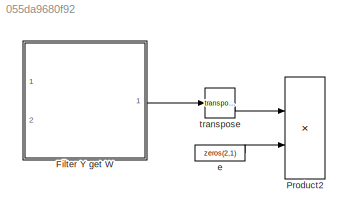
MODEL slx_055da9680f92
KIND model
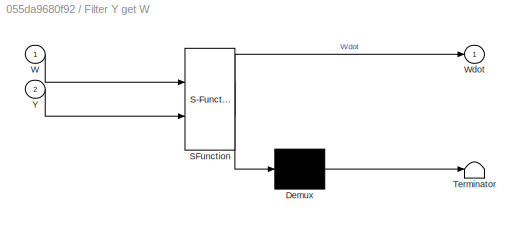
BLOCK [SubSystem] Filter Y get W
  ErrorFcn = Stateflow.Translate.translate
  FunctionWithSeparateData = off
  MaskHideContents = off
  MinAlgLoopOccurrences = off
  Opaque = off
  PermitHierarchicalResolution = ExplicitOnly
  Ports = [2, 1]
  PropExecContextOutsideSubsystem = off
  RTWSystemCode = Auto
  RequestExecContextInheritance = off
  SFBlockType = MATLAB Function
  TreatAsAtomicUnit = on
BLOCK [Demux] Filter Y get W/ Demux 
  Outputs = 1
  Ports = [1, 1]
BLOCK [S-Function] Filter Y get W/ SFunction 
  EnableBusSupport = on
  FunctionName = sf_sfun
  PortCounts = [2 2]
  Ports = [2, 2]
  Tag = Stateflow S-Function extra_robot_stuff 5
BLOCK [Terminator] Filter Y get W/ Terminator 
BLOCK [Inport] Filter Y get W/W
  IconDisplay = Port number
BLOCK [Outport] Filter Y get W/Wdot
  IconDisplay = Port number
BLOCK [Inport] Filter Y get W/Y
  IconDisplay = Port number
  Port = 2
BLOCK [Product] Product2
  InputSameDT = off
  Multiplication = Matrix(*)
  OutDataTypeStr = Inherit: Inherit via internal rule
  Ports = [2, 1]
  SaturateOnIntegerOverflow = off
BLOCK [Constant] e
  Value = zeros(2,1)
BLOCK [Math] transpose
  Operator = transpose
  Ports = [1, 1]
LINE Filter Y get W:1 -> transpose:1
LINE e:1 -> Product2:2
LINE transpose:1 -> Product2:1
